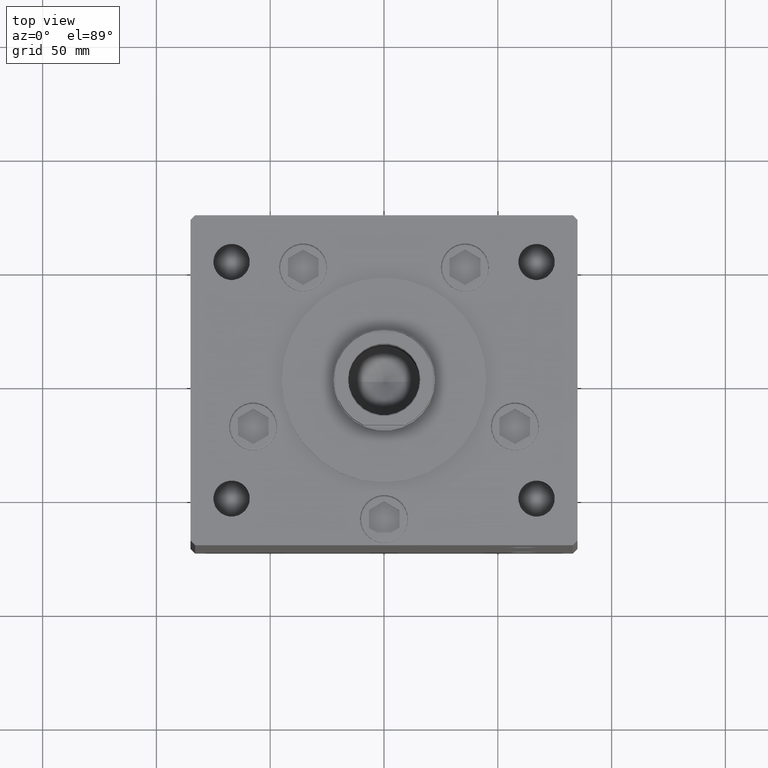
[diagram: clean part render]
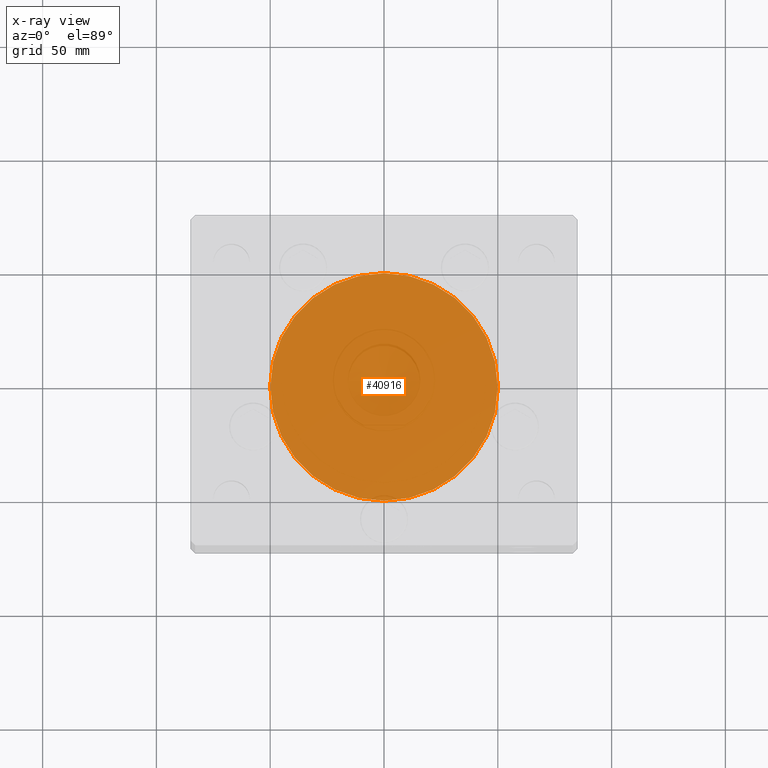
[diagram: x-ray — body ghosted, one internal face saturated and labeled with its STEP entity id]
A machine part, top view, then the same camera in x-ray: the body is ghosted and one INTERNAL B-rep face — a face not visible from any outside direction — is saturated and labeled: STEP entity #40916.
In plain terms, the highlighted planar face has unit normal (-0, 0, 1).
Its self-contained STEP definition (entity closure, byte-faithful):
#2173 = FACE_OUTER_BOUND ( 'NONE', #18656, .T. ) ;
#4292 = DIRECTION ( 'NONE',  ( -1.000000000000000000, 0.000000000000000000, 0.000000000000000000 ) ) ;
#4988 = CARTESIAN_POINT ( 'NONE',  ( 50.00000000000000000, 0.000000000000000000, -38.00000000000000000 ) ) ;
#7458 = EDGE_CURVE ( 'NONE', #25660, #43479, #39138, .T. ) ;
#7902 = EDGE_CURVE ( 'NONE', #43479, #25660, #50081, .T. ) ;
#8097 = CARTESIAN_POINT ( 'NONE',  ( 0.000000000000000000, 0.000000000000000000, -38.00000000000000000 ) ) ;
#9565 = PLANE ( 'NONE',  #24641 ) ;
#16256 = DIRECTION ( 'NONE',  ( -1.000000000000000000, 0.000000000000000000, 0.000000000000000000 ) ) ;
#17767 = ORIENTED_EDGE ( 'NONE', *, *, #7458, .T. ) ;
#18656 = EDGE_LOOP ( 'NONE', ( #17767, #25613 ) ) ;
#20348 = DIRECTION ( 'NONE',  ( 0.000000000000000000, 0.000000000000000000, -1.000000000000000000 ) ) ;
#22193 = CARTESIAN_POINT ( 'NONE',  ( 0.000000000000000000, 0.000000000000000000, -38.00000000000000000 ) ) ;
#24641 = AXIS2_PLACEMENT_3D ( 'NONE', #22193, #41182, #30105 ) ;
#25613 = ORIENTED_EDGE ( 'NONE', *, *, #7902, .T. ) ;
#25660 = VERTEX_POINT ( 'NONE', #4988 ) ;
#30105 = DIRECTION ( 'NONE',  ( -1.000000000000000000, 0.000000000000000000, -0.000000000000000000 ) ) ;
#31574 = AXIS2_PLACEMENT_3D ( 'NONE', #8097, #32592, #16256 ) ;
#32592 = DIRECTION ( 'NONE',  ( 0.000000000000000000, 0.000000000000000000, -1.000000000000000000 ) ) ;
#39138 = CIRCLE ( 'NONE', #31574, 50.00000000000000000 ) ;
#40916 = ADVANCED_FACE ( 'NONE', ( #2173 ), #9565, .T. ) ;
#41182 = DIRECTION ( 'NONE',  ( 0.000000000000000000, 0.000000000000000000, -1.000000000000000000 ) ) ;
#42471 = CARTESIAN_POINT ( 'NONE',  ( -50.00000000000000000, 6.123233995736766085E-15, -38.00000000000000000 ) ) ;
#43479 = VERTEX_POINT ( 'NONE', #42471 ) ;
#44090 = CARTESIAN_POINT ( 'NONE',  ( 0.000000000000000000, 0.000000000000000000, -38.00000000000000000 ) ) ;
#50081 = CIRCLE ( 'NONE', #50911, 50.00000000000000000 ) ;
#50911 = AXIS2_PLACEMENT_3D ( 'NONE', #44090, #20348, #4292 ) ;